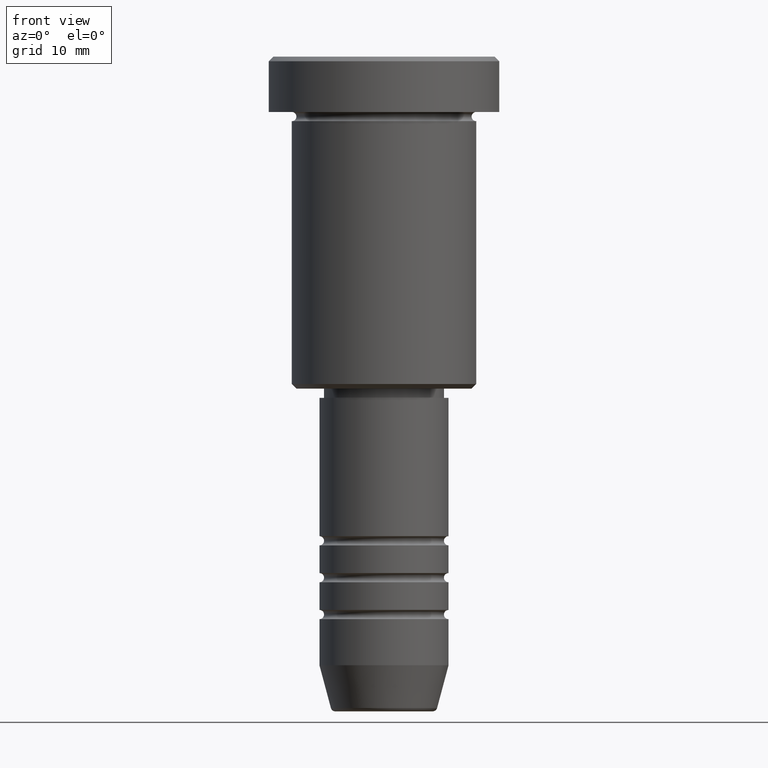
[diagram: clean part render]
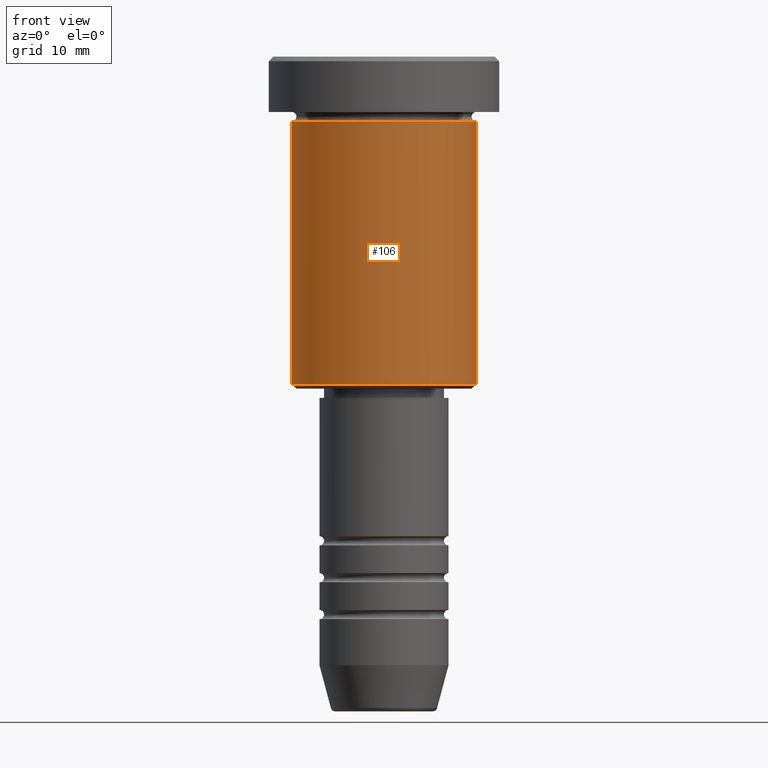
[diagram: same view with one face highlighted and labeled with its STEP entity id]
A machine part, front view. The second image highlights one B-rep face of the part: STEP entity #106.
In plain terms, the highlighted cylindrical surface (partial cylindrical patch) has radius 10 mm, axis along (-0, -0, 1).
Its self-contained STEP definition (entity closure, byte-faithful):
#24 = DIRECTION ( 'NONE',  ( -0.000000000000000000, -0.000000000000000000, 1.000000000000000000 ) ) ;
#78 = ORIENTED_EDGE ( 'NONE', *, *, #356, .T. ) ;
#86 = CIRCLE ( 'NONE', #829, 10.00000000000000000 ) ;
#106 = ADVANCED_FACE ( 'NONE', ( #753 ), #489, .T. ) ;
#192 = CARTESIAN_POINT ( 'NONE',  ( 10.00000000000000000, 0.000000000000000000, 0.000000000000000000 ) ) ;
#197 = DIRECTION ( 'NONE',  ( 1.000000000000000000, 0.000000000000000000, 0.000000000000000000 ) ) ;
#205 = CARTESIAN_POINT ( 'NONE',  ( -10.00000000000000000, 1.224646799147353256E-15, -35.50000000000000711 ) ) ;
#206 = ORIENTED_EDGE ( 'NONE', *, *, #1173, .T. ) ;
#279 = AXIS2_PLACEMENT_3D ( 'NONE', #346, #709, #889 ) ;
#285 = CARTESIAN_POINT ( 'NONE',  ( 0.000000000000000000, 0.000000000000000000, -6.999999999999996447 ) ) ;
#296 = EDGE_LOOP ( 'NONE', ( #947, #78, #206, #312 ) ) ;
#312 = ORIENTED_EDGE ( 'NONE', *, *, #600, .F. ) ;
#346 = CARTESIAN_POINT ( 'NONE',  ( 0.000000000000000000, 0.000000000000000000, -35.50000000000000711 ) ) ;
#356 = EDGE_CURVE ( 'NONE', #512, #855, #498, .T. ) ;
#390 = DIRECTION ( 'NONE',  ( -0.000000000000000000, -0.000000000000000000, 1.000000000000000000 ) ) ;
#480 = EDGE_CURVE ( 'NONE', #512, #935, #482, .T. ) ;
#482 = LINE ( 'NONE', #568, #537 ) ;
#489 = CYLINDRICAL_SURFACE ( 'NONE', #595, 10.00000000000000000 ) ;
#498 = CIRCLE ( 'NONE', #279, 10.00000000000000000 ) ;
#512 = VERTEX_POINT ( 'NONE', #205 ) ;
#537 = VECTOR ( 'NONE', #732, 1000.000000000000000 ) ;
#541 = VECTOR ( 'NONE', #651, 1000.000000000000000 ) ;
#568 = CARTESIAN_POINT ( 'NONE',  ( -10.00000000000000000, 1.224646799147353256E-15, 0.000000000000000000 ) ) ;
#595 = AXIS2_PLACEMENT_3D ( 'NONE', #822, #390, #740 ) ;
#600 = EDGE_CURVE ( 'NONE', #935, #793, #86, .T. ) ;
#607 = CARTESIAN_POINT ( 'NONE',  ( 10.00000000000000000, 0.000000000000000000, -6.999999999999996447 ) ) ;
#651 = DIRECTION ( 'NONE',  ( -0.000000000000000000, -0.000000000000000000, 1.000000000000000000 ) ) ;
#709 = DIRECTION ( 'NONE',  ( -0.000000000000000000, -0.000000000000000000, 1.000000000000000000 ) ) ;
#732 = DIRECTION ( 'NONE',  ( -0.000000000000000000, -0.000000000000000000, 1.000000000000000000 ) ) ;
#740 = DIRECTION ( 'NONE',  ( 1.000000000000000000, 0.000000000000000000, 0.000000000000000000 ) ) ;
#753 = FACE_OUTER_BOUND ( 'NONE', #296, .T. ) ;
#793 = VERTEX_POINT ( 'NONE', #607 ) ;
#822 = CARTESIAN_POINT ( 'NONE',  ( 0.000000000000000000, 0.000000000000000000, 0.000000000000000000 ) ) ;
#829 = AXIS2_PLACEMENT_3D ( 'NONE', #285, #24, #197 ) ;
#855 = VERTEX_POINT ( 'NONE', #1058 ) ;
#889 = DIRECTION ( 'NONE',  ( -1.000000000000000000, 0.000000000000000000, 0.000000000000000000 ) ) ;
#935 = VERTEX_POINT ( 'NONE', #980 ) ;
#947 = ORIENTED_EDGE ( 'NONE', *, *, #480, .F. ) ;
#980 = CARTESIAN_POINT ( 'NONE',  ( -10.00000000000000000, 1.224646799147353256E-15, -6.999999999999996447 ) ) ;
#1009 = LINE ( 'NONE', #192, #541 ) ;
#1058 = CARTESIAN_POINT ( 'NONE',  ( 10.00000000000000000, 0.000000000000000000, -35.50000000000000711 ) ) ;
#1173 = EDGE_CURVE ( 'NONE', #855, #793, #1009, .T. ) ;